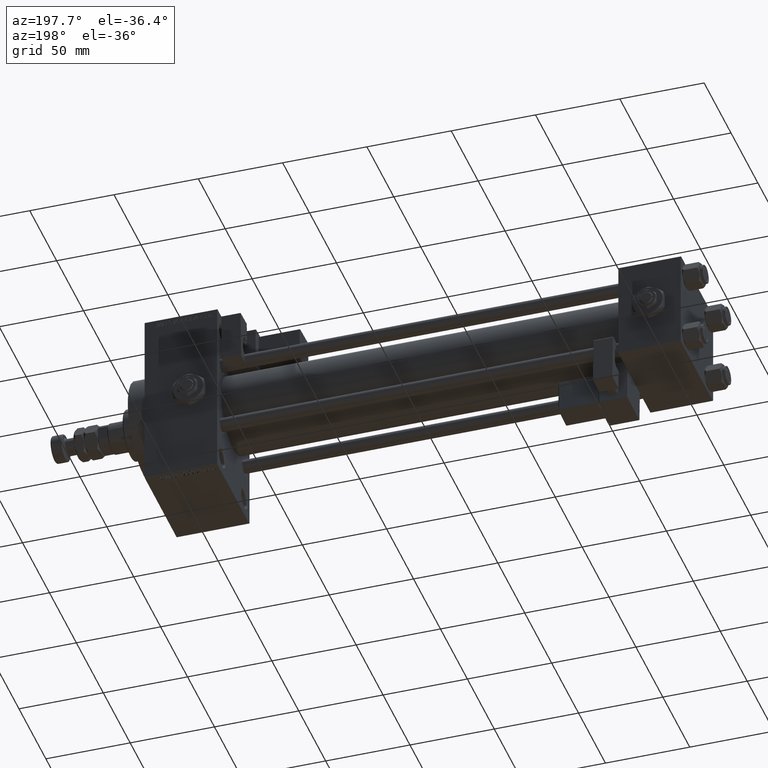
[diagram: clean part render]
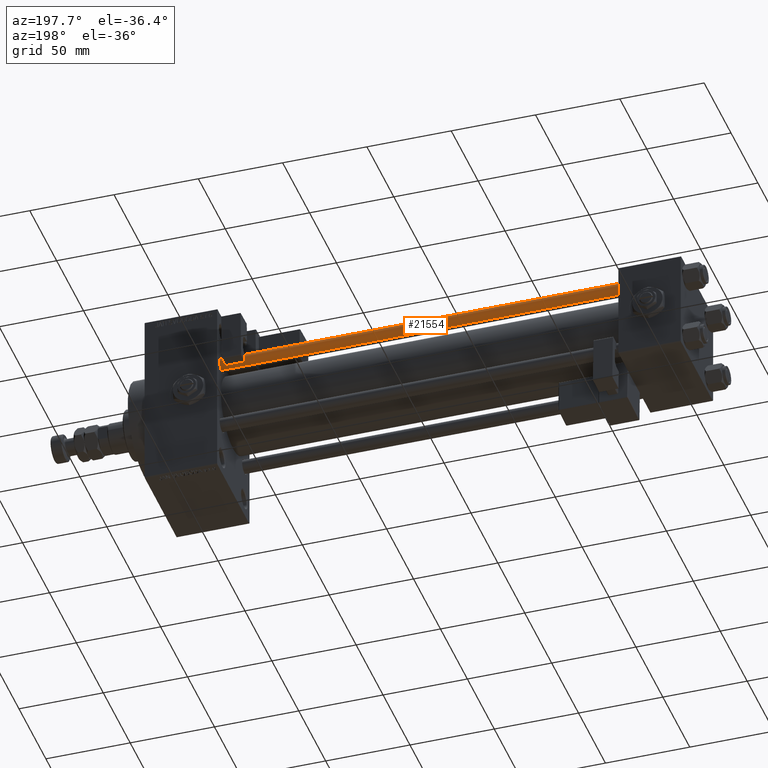
[diagram: same view with one face highlighted and labeled with its STEP entity id]
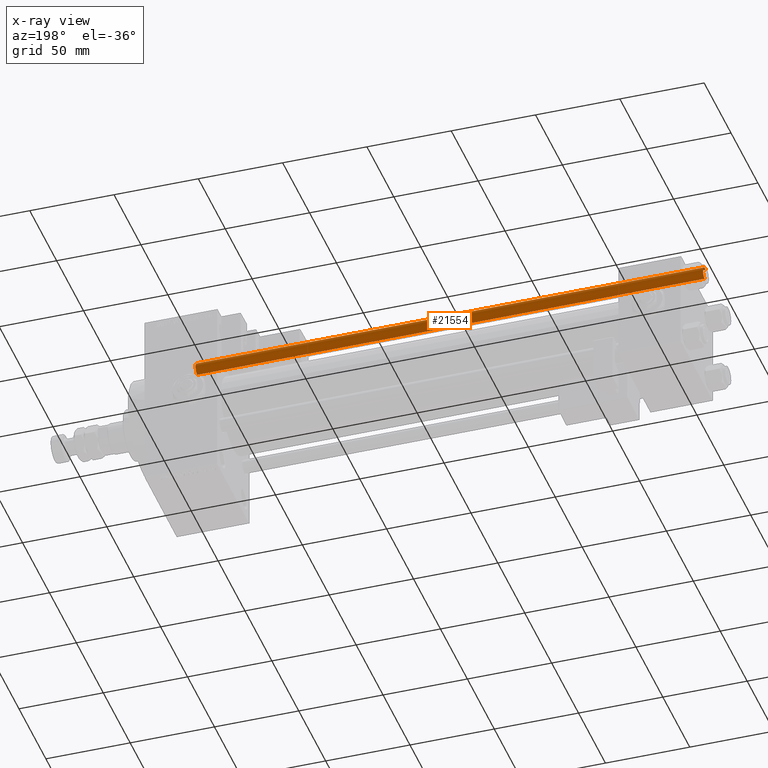
[diagram: x-ray of the same camera — body ghosted, the highlighted face saturated]
A machine part, auxiliary view. The second image highlights one B-rep face of the part: STEP entity #21554.
The next image is the same camera in x-ray: the body ghosted, the highlighted face saturated — about 0% of this face is hidden behind the body in this view.
In plain terms, the highlighted cylindrical surface (edge-blend (fillet) strip) has radius 4 mm, axis along (-1, -0, 0).
Its self-contained STEP definition (entity closure, byte-faithful):
#702 = DIRECTION ( 'NONE',  ( -0.000000000000000000, -0.000000000000000000, -1.000000000000000000 ) ) ;
#1265 = CARTESIAN_POINT ( 'NONE',  ( 4.000000000000000000, 4.898587196589412829E-16, 301.4999999999999432 ) ) ;
#2053 = EDGE_LOOP ( 'NONE', ( #49215, #28412, #20380, #13613 ) ) ;
#3566 = AXIS2_PLACEMENT_3D ( 'NONE', #19306, #10396, #27420 ) ;
#4778 = CARTESIAN_POINT ( 'NONE',  ( 0.000000000000000000, 0.000000000000000000, 0.5000000000000559552 ) ) ;
#4929 = EDGE_CURVE ( 'NONE', #37025, #9717, #46750, .T. ) ;
#8561 = DIRECTION ( 'NONE',  ( 1.000000000000000000, 0.000000000000000000, 0.000000000000000000 ) ) ;
#9717 = VERTEX_POINT ( 'NONE', #30963 ) ;
#10396 = DIRECTION ( 'NONE',  ( -0.000000000000000000, -0.000000000000000000, -1.000000000000000000 ) ) ;
#10942 = CYLINDRICAL_SURFACE ( 'NONE', #3566, 4.000000000000000000 ) ;
#11709 = EDGE_CURVE ( 'NONE', #23213, #35885, #21224, .T. ) ;
#11933 = CIRCLE ( 'NONE', #26586, 4.000000000000000000 ) ;
#13613 = ORIENTED_EDGE ( 'NONE', *, *, #4929, .F. ) ;
#14072 = VECTOR ( 'NONE', #702, 1000.000000000000000 ) ;
#14090 = DIRECTION ( 'NONE',  ( -0.000000000000000000, -0.000000000000000000, -1.000000000000000000 ) ) ;
#19306 = CARTESIAN_POINT ( 'NONE',  ( 0.000000000000000000, 0.000000000000000000, 302.0000000000000000 ) ) ;
#20380 = ORIENTED_EDGE ( 'NONE', *, *, #39059, .T. ) ;
#21224 = LINE ( 'NONE', #41733, #14072 ) ;
#21554 = ADVANCED_FACE ( 'NONE', ( #47933 ), #10942, .T. ) ;
#23213 = VERTEX_POINT ( 'NONE', #1265 ) ;
#24230 = VECTOR ( 'NONE', #14090, 1000.000000000000000 ) ;
#26586 = AXIS2_PLACEMENT_3D ( 'NONE', #4778, #45537, #8561 ) ;
#27420 = DIRECTION ( 'NONE',  ( -1.000000000000000000, 0.000000000000000000, 0.000000000000000000 ) ) ;
#28412 = ORIENTED_EDGE ( 'NONE', *, *, #11709, .T. ) ;
#29360 = CIRCLE ( 'NONE', #46557, 4.000000000000000000 ) ;
#30963 = CARTESIAN_POINT ( 'NONE',  ( -4.000000000000000000, 0.000000000000000000, 0.5000000000000559552 ) ) ;
#35027 = CARTESIAN_POINT ( 'NONE',  ( 0.000000000000000000, 0.000000000000000000, 301.4999999999999432 ) ) ;
#35885 = VERTEX_POINT ( 'NONE', #47986 ) ;
#37025 = VERTEX_POINT ( 'NONE', #50817 ) ;
#39059 = EDGE_CURVE ( 'NONE', #35885, #9717, #11933, .T. ) ;
#41733 = CARTESIAN_POINT ( 'NONE',  ( 4.000000000000000000, 4.898587196589412829E-16, 302.0000000000000000 ) ) ;
#42950 = CARTESIAN_POINT ( 'NONE',  ( -4.000000000000000000, 0.000000000000000000, 302.0000000000000000 ) ) ;
#43929 = DIRECTION ( 'NONE',  ( 1.000000000000000000, 0.000000000000000000, 0.000000000000000000 ) ) ;
#45537 = DIRECTION ( 'NONE',  ( -0.000000000000000000, -0.000000000000000000, 1.000000000000000000 ) ) ;
#46557 = AXIS2_PLACEMENT_3D ( 'NONE', #35027, #47176, #43929 ) ;
#46613 = EDGE_CURVE ( 'NONE', #37025, #23213, #29360, .T. ) ;
#46750 = LINE ( 'NONE', #42950, #24230 ) ;
#47176 = DIRECTION ( 'NONE',  ( 0.000000000000000000, 0.000000000000000000, -1.000000000000000000 ) ) ;
#47933 = FACE_OUTER_BOUND ( 'NONE', #2053, .T. ) ;
#47986 = CARTESIAN_POINT ( 'NONE',  ( 4.000000000000000000, 4.898587196589412829E-16, 0.5000000000000559552 ) ) ;
#49215 = ORIENTED_EDGE ( 'NONE', *, *, #46613, .T. ) ;
#50817 = CARTESIAN_POINT ( 'NONE',  ( -4.000000000000000000, 0.000000000000000000, 301.4999999999999432 ) ) ;